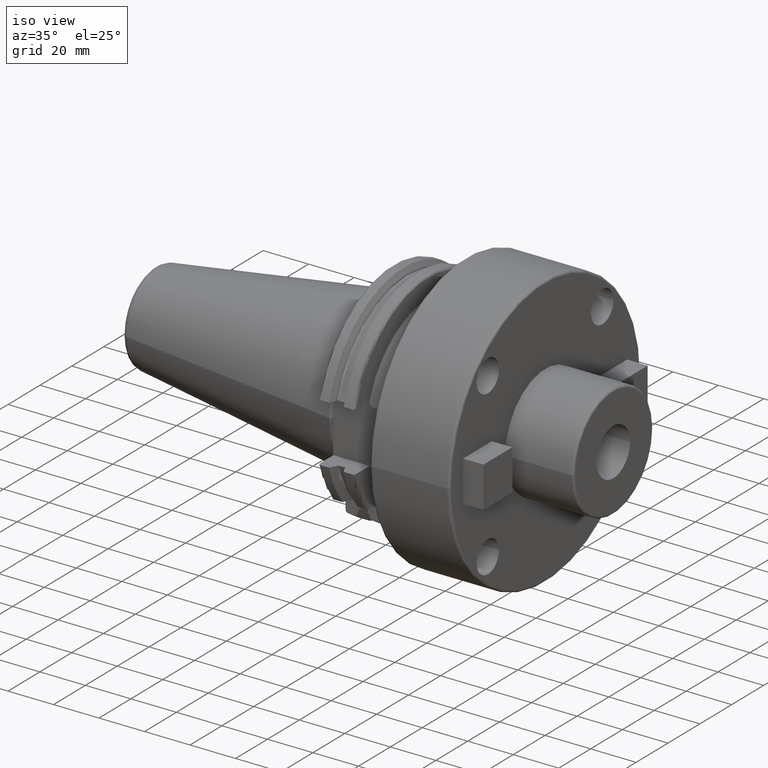
[diagram: clean part render]
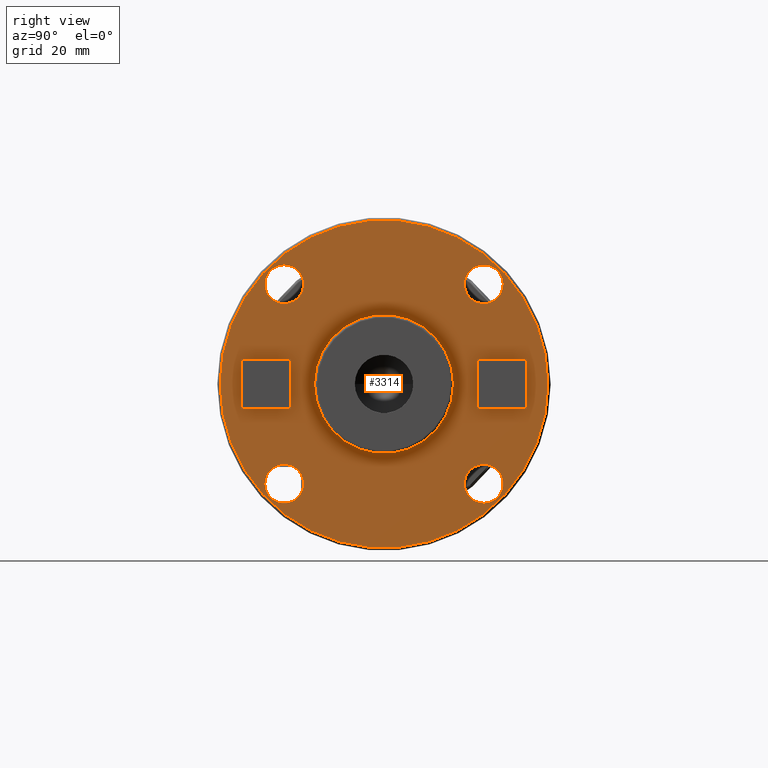
[diagram: tour spotlight — one face highlighted and labeled with its STEP entity id]
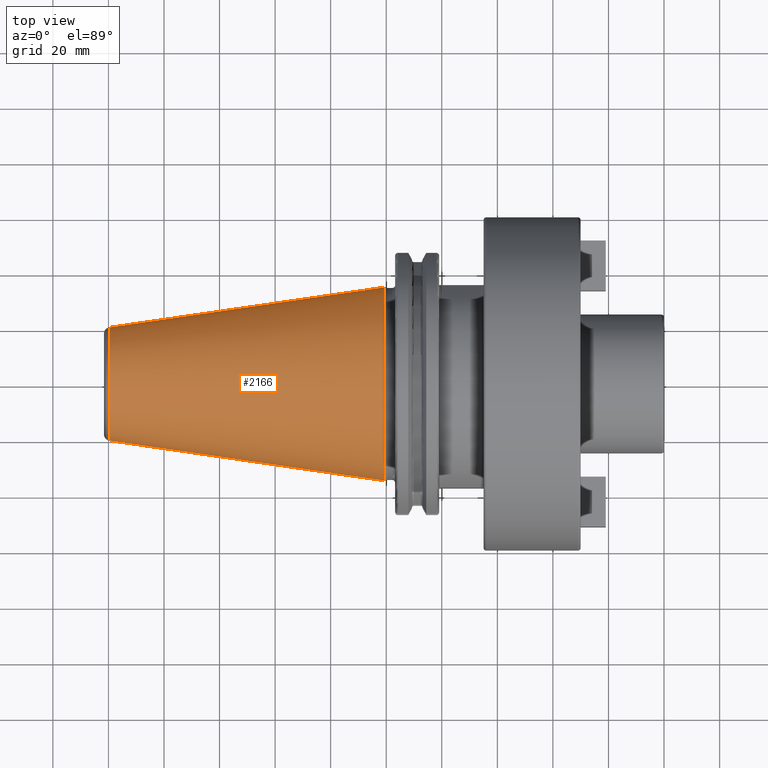
[diagram: tour spotlight — one face highlighted and labeled with its STEP entity id]
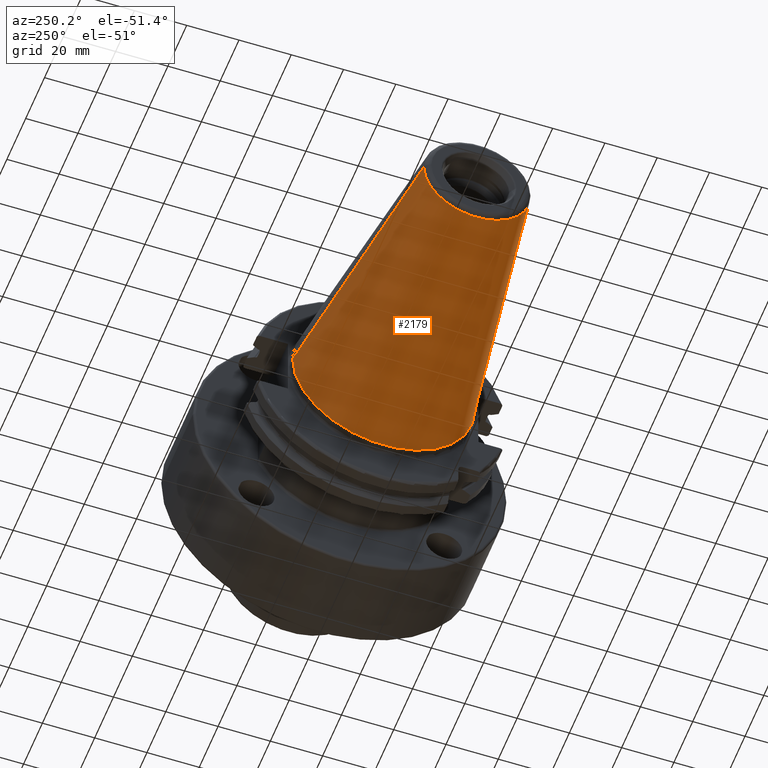
[diagram: tour spotlight — one face highlighted and labeled with its STEP entity id]
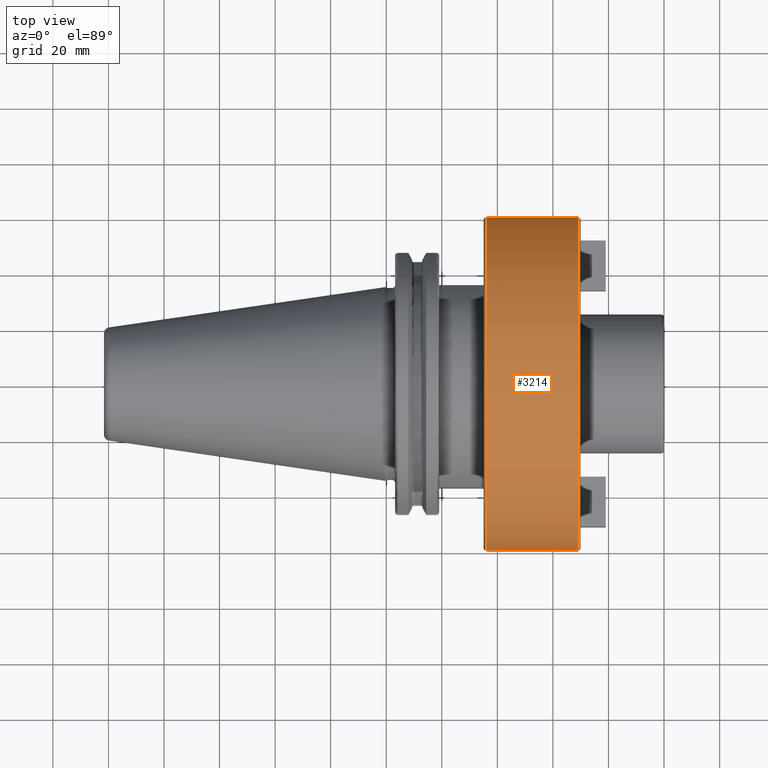
[diagram: tour spotlight — one face highlighted and labeled with its STEP entity id]
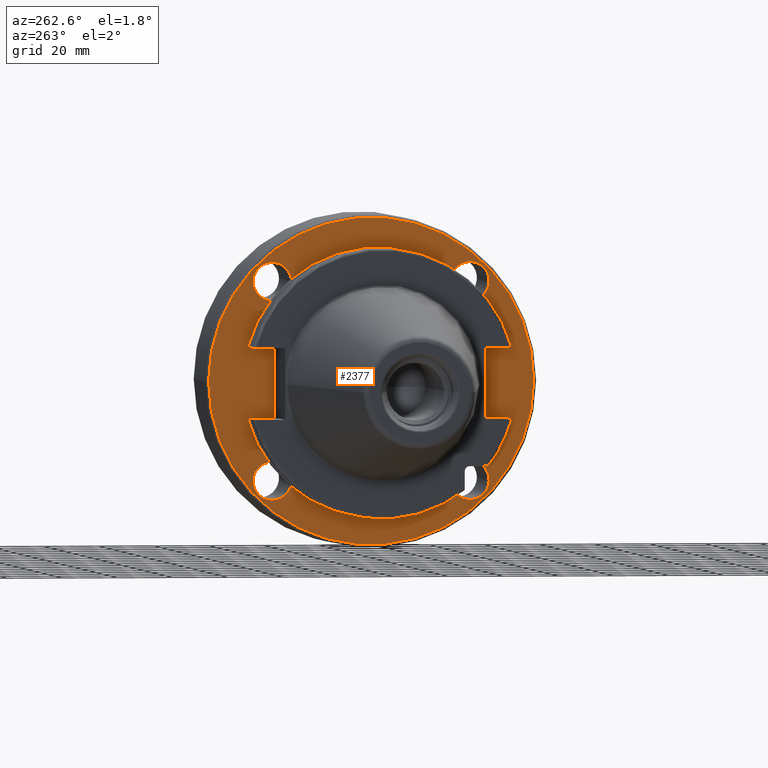
[diagram: tour spotlight — one face highlighted and labeled with its STEP entity id]
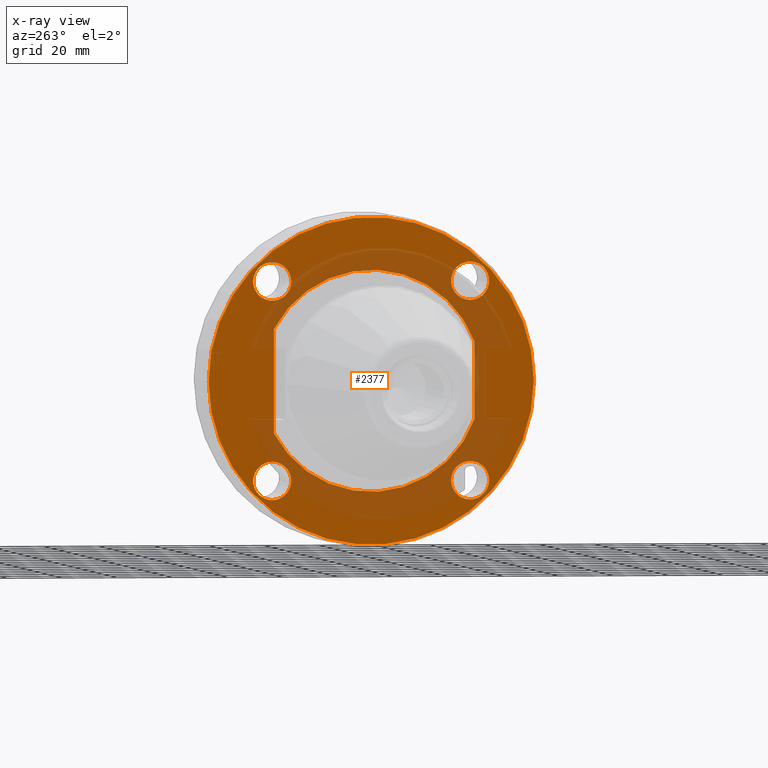
[diagram: x-ray of the same camera — body ghosted, this tour face saturated]
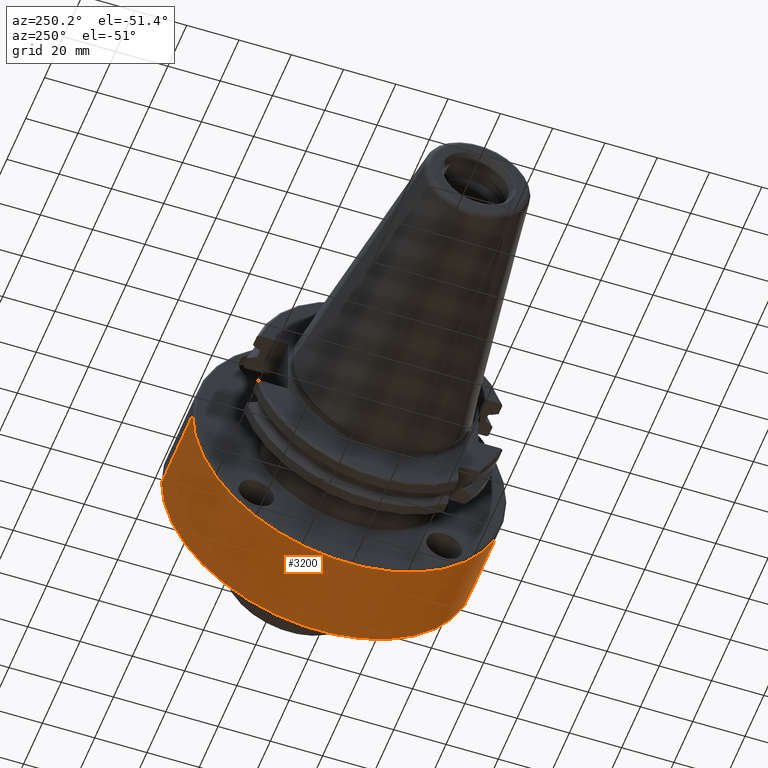
[diagram: tour spotlight — one face highlighted and labeled with its STEP entity id]
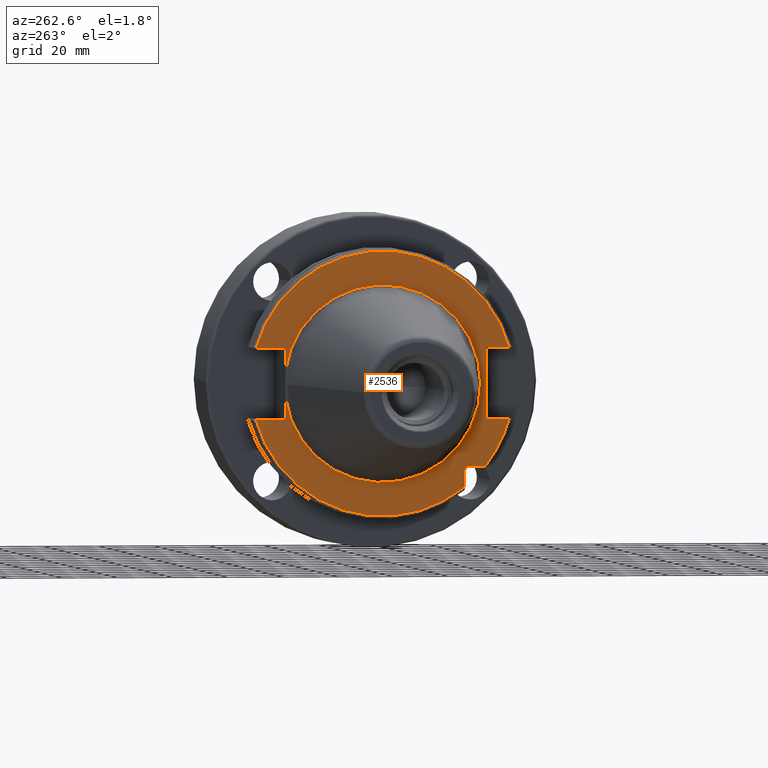
[diagram: tour spotlight — one face highlighted and labeled with its STEP entity id]
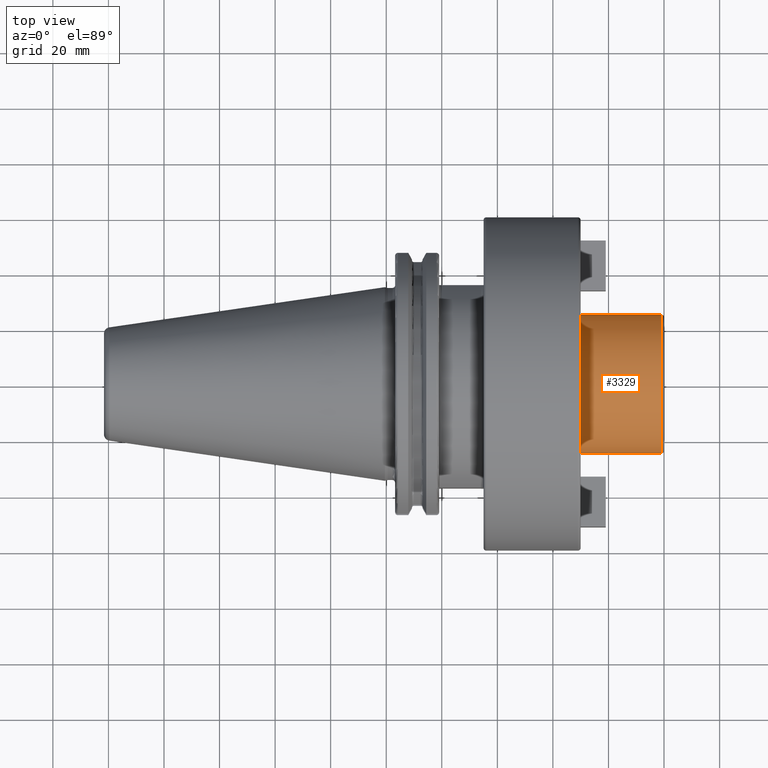
[diagram: tour spotlight — one face highlighted and labeled with its STEP entity id]
A machine part: a face-by-face anatomy tour. The part has 146 B-rep faces; the first image is the clean iso view, then the 8 largest visible faces are spotlighted one at a time (largest first), each with its STEP entity span.

Face 1 — right view, entity #3314. In plain terms, the highlighted planar face has unit normal (1, 0, 0).
Definition (entity closure, byte-faithful):
#1199=CARTESIAN_POINT('',(7.E1,0.E0,0.E0));
#1200=DIRECTION('',(1.E0,0.E0,0.E0));
#1201=DIRECTION('',(0.E0,1.E0,0.E0));
#1202=AXIS2_PLACEMENT_3D('',#1199,#1200,#1201);
#1204=CARTESIAN_POINT('',(7.E1,0.E0,0.E0));
#1205=DIRECTION('',(-1.E0,0.E0,0.E0));
#1206=DIRECTION('',(0.E0,1.E0,0.E0));
#1207=AXIS2_PLACEMENT_3D('',#1204,#1205,#1206);
#1209=CARTESIAN_POINT('',(7.E1,0.E0,0.E0));
#1210=DIRECTION('',(-1.E0,0.E0,0.E0));
#1211=DIRECTION('',(0.E0,1.E0,0.E0));
#1212=AXIS2_PLACEMENT_3D('',#1209,#1210,#1211);
#1214=CARTESIAN_POINT('',(7.E1,0.E0,0.E0));
#1215=DIRECTION('',(-1.E0,0.E0,0.E0));
#1216=DIRECTION('',(0.E0,-1.E0,0.E0));
#1217=AXIS2_PLACEMENT_3D('',#1214,#1215,#1216);
#1219=DIRECTION('',(0.E0,-1.E0,0.E0));
#1220=VECTOR('',#1219,1.8E1);
#1221=CARTESIAN_POINT('',(7.E1,5.15E1,9.E0));
#1222=LINE('',#1221,#1220);
#1223=DIRECTION('',(0.E0,0.E0,-1.E0));
#1224=VECTOR('',#1223,1.8E1);
#1225=CARTESIAN_POINT('',(7.E1,3.35E1,9.E0));
#1226=LINE('',#1225,#1224);
#1227=DIRECTION('',(0.E0,1.E0,0.E0));
#1228=VECTOR('',#1227,1.8E1);
#1229=CARTESIAN_POINT('',(7.E1,3.35E1,-9.E0));
#1230=LINE('',#1229,#1228);
#1231=DIRECTION('',(0.E0,0.E0,1.E0));
#1232=VECTOR('',#1231,1.8E1);
#1233=CARTESIAN_POINT('',(7.E1,5.15E1,-9.E0));
#1234=LINE('',#1233,#1232);
#1235=DIRECTION('',(0.E0,-1.E0,0.E0));
#1236=VECTOR('',#1235,1.8E1);
#1237=CARTESIAN_POINT('',(7.E1,-3.35E1,9.E0));
#1238=LINE('',#1237,#1236);
#1239=DIRECTION('',(0.E0,0.E0,-1.E0));
#1240=VECTOR('',#1239,1.8E1);
#1241=CARTESIAN_POINT('',(7.E1,-5.15E1,9.E0));
#1242=LINE('',#1241,#1240);
#1243=DIRECTION('',(0.E0,1.E0,0.E0));
#1244=VECTOR('',#1243,1.8E1);
#1245=CARTESIAN_POINT('',(7.E1,-5.15E1,-9.E0));
#1246=LINE('',#1245,#1244);
#1247=DIRECTION('',(0.E0,0.E0,1.E0));
#1248=VECTOR('',#1247,1.8E1);
#1249=CARTESIAN_POINT('',(7.E1,-3.35E1,-9.E0));
#1250=LINE('',#1249,#1248);
#1251=CARTESIAN_POINT('',(7.E1,-3.592102448428E1,-3.592102448428E1));
#1252=DIRECTION('',(1.E0,0.E0,0.E0));
#1253=DIRECTION('',(0.E0,-1.E0,0.E0));
#1254=AXIS2_PLACEMENT_3D('',#1251,#1252,#1253);
#1256=CARTESIAN_POINT('',(7.E1,-3.592102448428E1,-3.592102448428E1));
#1257=DIRECTION('',(1.E0,0.E0,0.E0));
#1258=DIRECTION('',(0.E0,1.E0,0.E0));
#1259=AXIS2_PLACEMENT_3D('',#1256,#1257,#1258);
#1261=CARTESIAN_POINT('',(7.E1,3.592102448428E1,-3.592102448428E1));
#1262=DIRECTION('',(1.E0,0.E0,0.E0));
#1263=DIRECTION('',(0.E0,0.E0,-1.E0));
#1264=AXIS2_PLACEMENT_3D('',#1261,#1262,#1263);
#1266=CARTESIAN_POINT('',(7.E1,3.592102448428E1,-3.592102448428E1));
#1267=DIRECTION('',(1.E0,0.E0,0.E0));
#1268=DIRECTION('',(0.E0,0.E0,1.E0));
#1269=AXIS2_PLACEMENT_3D('',#1266,#1267,#1268);
#1271=CARTESIAN_POINT('',(7.E1,3.592102448428E1,3.592102448428E1));
#1272=DIRECTION('',(1.E0,0.E0,0.E0));
#1273=DIRECTION('',(0.E0,1.E0,0.E0));
#1274=AXIS2_PLACEMENT_3D('',#1271,#1272,#1273);
#1276=CARTESIAN_POINT('',(7.E1,3.592102448428E1,3.592102448428E1));
#1277=DIRECTION('',(1.E0,0.E0,0.E0));
#1278=DIRECTION('',(0.E0,-1.E0,0.E0));
#1279=AXIS2_PLACEMENT_3D('',#1276,#1277,#1278);
#1281=CARTESIAN_POINT('',(7.E1,-3.592102448428E1,3.592102448428E1));
#1282=DIRECTION('',(1.E0,0.E0,0.E0));
#1283=DIRECTION('',(0.E0,0.E0,1.E0));
#1284=AXIS2_PLACEMENT_3D('',#1281,#1282,#1283);
#1286=CARTESIAN_POINT('',(7.E1,-3.592102448428E1,3.592102448428E1));
#1287=DIRECTION('',(1.E0,0.E0,0.E0));
#1288=DIRECTION('',(0.E0,0.E0,-1.E0));
#1289=AXIS2_PLACEMENT_3D('',#1286,#1287,#1288);
#1942=CARTESIAN_POINT('',(7.E1,2.5E1,0.E0));
#1943=CARTESIAN_POINT('',(7.E1,-2.5E1,0.E0));
#1944=VERTEX_POINT('',#1942);
#1945=VERTEX_POINT('',#1943);
#1950=CARTESIAN_POINT('',(7.E1,5.9E1,0.E0));
#1951=CARTESIAN_POINT('',(7.E1,-5.9E1,-1.445083222994E-14));
#1952=VERTEX_POINT('',#1950);
#1953=VERTEX_POINT('',#1951);
#1988=CARTESIAN_POINT('',(7.E1,5.15E1,9.E0));
#1989=CARTESIAN_POINT('',(7.E1,3.35E1,9.E0));
#1990=VERTEX_POINT('',#1988);
#1991=VERTEX_POINT('',#1989);
#1992=CARTESIAN_POINT('',(7.E1,3.35E1,-9.E0));
#1993=VERTEX_POINT('',#1992);
#1994=CARTESIAN_POINT('',(7.E1,5.15E1,-9.E0));
#1995=VERTEX_POINT('',#1994);
#1996=CARTESIAN_POINT('',(7.E1,-3.35E1,9.E0));
#1997=CARTESIAN_POINT('',(7.E1,-5.15E1,9.E0));
#1998=VERTEX_POINT('',#1996);
#1999=VERTEX_POINT('',#1997);
#2000=CARTESIAN_POINT('',(7.E1,-5.15E1,-9.E0));
#2001=VERTEX_POINT('',#2000);
#2002=CARTESIAN_POINT('',(7.E1,-3.35E1,-9.E0));
#2003=VERTEX_POINT('',#2002);
#2056=CARTESIAN_POINT('',(7.E1,-4.292102448428E1,-3.592102448428E1));
#2057=CARTESIAN_POINT('',(7.E1,-2.892102448428E1,-3.592102448428E1));
#2058=VERTEX_POINT('',#2056);
#2059=VERTEX_POINT('',#2057);
#2064=CARTESIAN_POINT('',(7.E1,3.592102448428E1,-4.292102448428E1));
#2065=CARTESIAN_POINT('',(7.E1,3.592102448428E1,-2.892102448428E1));
#2066=VERTEX_POINT('',#2064);
#2067=VERTEX_POINT('',#2065);
#2072=CARTESIAN_POINT('',(7.E1,4.292102448428E1,3.592102448428E1));
#2073=CARTESIAN_POINT('',(7.E1,2.892102448428E1,3.592102448428E1));
#2074=VERTEX_POINT('',#2072);
#2075=VERTEX_POINT('',#2073);
#2080=CARTESIAN_POINT('',(7.E1,-3.592102448428E1,4.292102448428E1));
#2081=CARTESIAN_POINT('',(7.E1,-3.592102448428E1,2.892102448428E1));
#2082=VERTEX_POINT('',#2080);
#2083=VERTEX_POINT('',#2081);
#3255=CARTESIAN_POINT('',(7.E1,0.E0,0.E0));
#3256=DIRECTION('',(1.E0,0.E0,0.E0));
#3257=DIRECTION('',(0.E0,-1.E0,0.E0));
#3258=AXIS2_PLACEMENT_3D('',#3255,#3256,#3257);
#3259=PLANE('',#3258);
#3260=ORIENTED_EDGE('',*,*,#3249,.T.);
#3261=ORIENTED_EDGE('',*,*,#3235,.T.);
#3262=EDGE_LOOP('',(#3260,#3261));
#3263=FACE_OUTER_BOUND('',#3262,.F.);
#3265=ORIENTED_EDGE('',*,*,#3264,.T.);
#3267=ORIENTED_EDGE('',*,*,#3266,.F.);
#3268=EDGE_LOOP('',(#3265,#3267));
#3269=FACE_BOUND('',#3268,.F.);
#3271=ORIENTED_EDGE('',*,*,#3270,.T.);
#3273=ORIENTED_EDGE('',*,*,#3272,.T.);
#3275=ORIENTED_EDGE('',*,*,#3274,.T.);
#3277=ORIENTED_EDGE('',*,*,#3276,.T.);
#3278=EDGE_LOOP('',(#3271,#3273,#3275,#3277));
#3279=FACE_BOUND('',#3278,.F.);
#3281=ORIENTED_EDGE('',*,*,#3280,.T.);
#3283=ORIENTED_EDGE('',*,*,#3282,.T.);
#3285=ORIENTED_EDGE('',*,*,#3284,.T.);
#3287=ORIENTED_EDGE('',*,*,#3286,.T.);
#3288=EDGE_LOOP('',(#3281,#3283,#3285,#3287));
#3289=FACE_BOUND('',#3288,.F.);
#3291=ORIENTED_EDGE('',*,*,#3290,.T.);
#3293=ORIENTED_EDGE('',*,*,#3292,.T.);
#3294=EDGE_LOOP('',(#3291,#3293));
#3295=FACE_BOUND('',#3294,.F.);
#3297=ORIENTED_EDGE('',*,*,#3296,.T.);
#3299=ORIENTED_EDGE('',*,*,#3298,.T.);
#3300=EDGE_LOOP('',(#3297,#3299));
#3301=FACE_BOUND('',#3300,.F.);
#3303=ORIENTED_EDGE('',*,*,#3302,.T.);
#3305=ORIENTED_EDGE('',*,*,#3304,.T.);
#3306=EDGE_LOOP('',(#3303,#3305));
#3307=FACE_BOUND('',#3306,.F.);
#3309=ORIENTED_EDGE('',*,*,#3308,.T.);
#3311=ORIENTED_EDGE('',*,*,#3310,.T.);
#3312=EDGE_LOOP('',(#3309,#3311));
#3313=FACE_BOUND('',#3312,.F.);
#3314=ADVANCED_FACE('',(#3263,#3269,#3279,#3289,#3295,#3301,#3307,#3313),#3259,
.T.);
#1203=CIRCLE('',#1202,2.5E1);
#1208=CIRCLE('',#1207,2.5E1);
#1213=CIRCLE('',#1212,5.9E1);
#1218=CIRCLE('',#1217,5.9E1);
#1255=CIRCLE('',#1254,7.E0);
#1260=CIRCLE('',#1259,7.E0);
#1265=CIRCLE('',#1264,7.E0);
#1270=CIRCLE('',#1269,7.E0);
#1275=CIRCLE('',#1274,7.E0);
#1280=CIRCLE('',#1279,7.E0);
#1285=CIRCLE('',#1284,7.E0);
#1290=CIRCLE('',#1289,7.E0);
#3235=EDGE_CURVE('',#1953,#1952,#1218,.T.);
#3249=EDGE_CURVE('',#1952,#1953,#1213,.T.);
#3264=EDGE_CURVE('',#1944,#1945,#1203,.T.);
#3266=EDGE_CURVE('',#1944,#1945,#1208,.T.);
#3270=EDGE_CURVE('',#1990,#1991,#1222,.T.);
#3272=EDGE_CURVE('',#1991,#1993,#1226,.T.);
#3274=EDGE_CURVE('',#1993,#1995,#1230,.T.);
#3276=EDGE_CURVE('',#1995,#1990,#1234,.T.);
#3280=EDGE_CURVE('',#1998,#1999,#1238,.T.);
#3282=EDGE_CURVE('',#1999,#2001,#1242,.T.);
#3284=EDGE_CURVE('',#2001,#2003,#1246,.T.);
#3286=EDGE_CURVE('',#2003,#1998,#1250,.T.);
#3290=EDGE_CURVE('',#2058,#2059,#1255,.T.);
#3292=EDGE_CURVE('',#2059,#2058,#1260,.T.);
#3296=EDGE_CURVE('',#2066,#2067,#1265,.T.);
#3298=EDGE_CURVE('',#2067,#2066,#1270,.T.);
#3302=EDGE_CURVE('',#2074,#2075,#1275,.T.);
#3304=EDGE_CURVE('',#2075,#2074,#1280,.T.);
#3308=EDGE_CURVE('',#2082,#2083,#1285,.T.);
#3310=EDGE_CURVE('',#2083,#2082,#1290,.T.);

Face 2 — top view, entity #2166. In plain terms, the highlighted conical surface has half-angle 8.298 deg.
Definition (entity closure, byte-faithful):
#37=CARTESIAN_POINT('',(-9.967471700563E1,0.E0,0.E0));
#38=DIRECTION('',(1.E0,0.E0,0.E0));
#39=DIRECTION('',(0.E0,1.E0,0.E0));
#40=AXIS2_PLACEMENT_3D('',#37,#38,#39);
#42=CARTESIAN_POINT('',(-4.896823332305E-1,0.E0,0.E0));
#43=DIRECTION('',(1.E0,0.E0,0.E0));
#44=DIRECTION('',(0.E0,1.E0,0.E0));
#45=AXIS2_PLACEMENT_3D('',#42,#43,#44);
#47=DIRECTION('',(-9.895312636440E-1,-1.443186691705E-1,0.E0));
#48=VECTOR('',#47,1.002343617797E2);
#49=CARTESIAN_POINT('',(-4.896823332305E-1,3.485358204157E1,0.E0));
#50=LINE('',#49,#48);
#51=DIRECTION('',(-9.895312636440E-1,1.443186691705E-1,0.E0));
#52=VECTOR('',#51,1.002343617797E2);
#53=CARTESIAN_POINT('',(-4.896823332305E-1,-3.485358204157E1,0.E0));
#54=LINE('',#53,#52);
#1739=CARTESIAN_POINT('',(-9.967471700563E1,2.038789234437E1,0.E0));
#1741=VERTEX_POINT('',#1739);
#1743=CARTESIAN_POINT('',(-9.967471700563E1,-2.038789234437E1,0.E0));
#1745=VERTEX_POINT('',#1743);
#1807=CARTESIAN_POINT('',(-4.896823332305E-1,3.485358204157E1,0.E0));
#1808=VERTEX_POINT('',#1807);
#1809=CARTESIAN_POINT('',(-4.896823332305E-1,-3.485358204157E1,0.E0));
#1810=VERTEX_POINT('',#1809);
#2152=CARTESIAN_POINT('',(-5.008219966943E1,0.E0,0.E0));
#2153=DIRECTION('',(1.E0,0.E0,0.E0));
#2154=DIRECTION('',(0.E0,-1.E0,0.E0));
#2155=AXIS2_PLACEMENT_3D('',#2152,#2153,#2154);
#2156=CONICAL_SURFACE('',#2155,2.762073719297E1,8.297826828206E0);
#2158=ORIENTED_EDGE('',*,*,#2157,.F.);
#2160=ORIENTED_EDGE('',*,*,#2159,.T.);
#2162=ORIENTED_EDGE('',*,*,#2161,.T.);
#2163=ORIENTED_EDGE('',*,*,#2145,.F.);
#2164=EDGE_LOOP('',(#2158,#2160,#2162,#2163));
#2165=FACE_OUTER_BOUND('',#2164,.F.);
#2166=ADVANCED_FACE('',(#2165),#2156,.T.);
#41=CIRCLE('',#40,2.038789234437E1);
#46=CIRCLE('',#45,3.485358204157E1);
#2145=EDGE_CURVE('',#1741,#1745,#41,.T.);
#2157=EDGE_CURVE('',#1808,#1741,#50,.T.);
#2159=EDGE_CURVE('',#1808,#1810,#46,.T.);
#2161=EDGE_CURVE('',#1810,#1745,#54,.T.);

Face 3 — auxiliary view, entity #2179. In plain terms, the highlighted conical surface has half-angle 8.298 deg.
Definition (entity closure, byte-faithful):
#32=CARTESIAN_POINT('',(-9.967471700563E1,0.E0,0.E0));
#33=DIRECTION('',(-1.E0,0.E0,0.E0));
#34=DIRECTION('',(0.E0,1.E0,0.E0));
#35=AXIS2_PLACEMENT_3D('',#32,#33,#34);
#47=DIRECTION('',(-9.895312636440E-1,-1.443186691705E-1,0.E0));
#48=VECTOR('',#47,1.002343617797E2);
#49=CARTESIAN_POINT('',(-4.896823332305E-1,3.485358204157E1,0.E0));
#50=LINE('',#49,#48);
#51=DIRECTION('',(-9.895312636440E-1,1.443186691705E-1,0.E0));
#52=VECTOR('',#51,1.002343617797E2);
#53=CARTESIAN_POINT('',(-4.896823332305E-1,-3.485358204157E1,0.E0));
#54=LINE('',#53,#52);
#55=CARTESIAN_POINT('',(-4.896823332305E-1,0.E0,0.E0));
#56=DIRECTION('',(-1.E0,0.E0,0.E0));
#57=DIRECTION('',(0.E0,1.E0,0.E0));
#58=AXIS2_PLACEMENT_3D('',#55,#56,#57);
#1739=CARTESIAN_POINT('',(-9.967471700563E1,2.038789234437E1,0.E0));
#1741=VERTEX_POINT('',#1739);
#1743=CARTESIAN_POINT('',(-9.967471700563E1,-2.038789234437E1,0.E0));
#1745=VERTEX_POINT('',#1743);
#1807=CARTESIAN_POINT('',(-4.896823332305E-1,3.485358204157E1,0.E0));
#1808=VERTEX_POINT('',#1807);
#1809=CARTESIAN_POINT('',(-4.896823332305E-1,-3.485358204157E1,0.E0));
#1810=VERTEX_POINT('',#1809);
#2167=CARTESIAN_POINT('',(-5.008219966943E1,0.E0,0.E0));
#2168=DIRECTION('',(1.E0,0.E0,0.E0));
#2169=DIRECTION('',(0.E0,-1.E0,0.E0));
#2170=AXIS2_PLACEMENT_3D('',#2167,#2168,#2169);
#2171=CONICAL_SURFACE('',#2170,2.762073719297E1,8.297826828206E0);
#2172=ORIENTED_EDGE('',*,*,#2157,.T.);
#2173=ORIENTED_EDGE('',*,*,#2134,.T.);
#2174=ORIENTED_EDGE('',*,*,#2161,.F.);
#2176=ORIENTED_EDGE('',*,*,#2175,.F.);
#2177=EDGE_LOOP('',(#2172,#2173,#2174,#2176));
#2178=FACE_OUTER_BOUND('',#2177,.F.);
#2179=ADVANCED_FACE('',(#2178),#2171,.T.);
#36=CIRCLE('',#35,2.038789234437E1);
#59=CIRCLE('',#58,3.485358204157E1);
#2134=EDGE_CURVE('',#1741,#1745,#36,.T.);
#2157=EDGE_CURVE('',#1808,#1741,#50,.T.);
#2161=EDGE_CURVE('',#1810,#1745,#54,.T.);
#2175=EDGE_CURVE('',#1808,#1810,#59,.T.);

Face 4 — top view, entity #3214. In plain terms, the highlighted cylindrical surface (partial cylindrical patch) has radius 60 mm, axis along (1, 0, 0).
Definition (entity closure, byte-faithful):
#1161=DIRECTION('',(-1.E0,0.E0,0.E0));
#1162=VECTOR('',#1161,3.295E1);
#1163=CARTESIAN_POINT('',(6.9E1,-6.E1,2.293775869450E-13));
#1164=LINE('',#1163,#1162);
#1170=DIRECTION('',(-1.E0,0.E0,0.E0));
#1171=VECTOR('',#1170,3.295E1);
#1172=CARTESIAN_POINT('',(6.9E1,6.E1,-2.445372334392E-13));
#1173=LINE('',#1172,#1171);
#1174=CARTESIAN_POINT('',(3.605E1,0.E0,0.E0));
#1175=DIRECTION('',(1.E0,0.E0,0.E0));
#1176=DIRECTION('',(0.E0,1.E0,0.E0));
#1177=AXIS2_PLACEMENT_3D('',#1174,#1175,#1176);
#1179=CARTESIAN_POINT('',(6.9E1,0.E0,0.E0));
#1180=DIRECTION('',(-1.E0,0.E0,0.E0));
#1181=DIRECTION('',(0.E0,-1.E0,0.E0));
#1182=AXIS2_PLACEMENT_3D('',#1179,#1180,#1181);
#1946=CARTESIAN_POINT('',(6.9E1,6.E1,0.E0));
#1947=CARTESIAN_POINT('',(6.9E1,-6.E1,-1.469576158977E-14));
#1948=VERTEX_POINT('',#1946);
#1949=VERTEX_POINT('',#1947);
#2044=CARTESIAN_POINT('',(3.605E1,-6.E1,-1.469576158977E-14));
#2045=CARTESIAN_POINT('',(3.605E1,6.E1,0.E0));
#2046=VERTEX_POINT('',#2044);
#2047=VERTEX_POINT('',#2045);
#3201=CARTESIAN_POINT('',(1.50025E1,0.E0,0.E0));
#3202=DIRECTION('',(1.E0,0.E0,0.E0));
#3203=DIRECTION('',(0.E0,-1.E0,0.E0));
#3204=AXIS2_PLACEMENT_3D('',#3201,#3202,#3203);
#3205=CYLINDRICAL_SURFACE('',#3204,6.E1);
#3207=ORIENTED_EDGE('',*,*,#3206,.F.);
#3208=ORIENTED_EDGE('',*,*,#3196,.F.);
#3210=ORIENTED_EDGE('',*,*,#3209,.F.);
#3211=ORIENTED_EDGE('',*,*,#3192,.T.);
#3212=EDGE_LOOP('',(#3207,#3208,#3210,#3211));
#3213=FACE_OUTER_BOUND('',#3212,.F.);
#3214=ADVANCED_FACE('',(#3213),#3205,.T.);
#1178=CIRCLE('',#1177,6.E1);
#1183=CIRCLE('',#1182,6.E1);
#3192=EDGE_CURVE('',#1949,#2046,#1164,.T.);
#3196=EDGE_CURVE('',#1948,#2047,#1173,.T.);
#3206=EDGE_CURVE('',#2047,#2046,#1178,.T.);
#3209=EDGE_CURVE('',#1949,#1948,#1183,.T.);

Face 5 — auxiliary view, entity #2377. An x-ray twin of the same camera follows (body ghosted, this face saturated) — the face is partly hidden behind the body. In plain terms, the highlighted planar face has unit normal (1, 0, 0).
Definition (entity closure, byte-faithful):
#122=DIRECTION('',(0.E0,0.E0,1.E0));
#123=VECTOR('',#122,3.762499169435E1);
#124=CARTESIAN_POINT('',(3.505E1,3.53E1,-1.881249584718E1));
#125=LINE('',#124,#123);
#154=CARTESIAN_POINT('',(3.505E1,0.E0,0.E0));
#155=DIRECTION('',(1.E0,0.E0,0.E0));
#156=DIRECTION('',(0.E0,8.825E-1,4.703123961794E-1));
#157=AXIS2_PLACEMENT_3D('',#154,#155,#156);
#159=CARTESIAN_POINT('',(3.505E1,-3.75E1,1.391941090708E1));
#199=CARTESIAN_POINT('',(3.505E1,3.53E1,1.881249584718E1));
#201=CARTESIAN_POINT('',(3.505E1,0.E0,0.E0));
#202=DIRECTION('',(1.E0,0.E0,0.E0));
#203=DIRECTION('',(0.E0,-1.E0,0.E0));
#204=AXIS2_PLACEMENT_3D('',#201,#202,#203);
#206=CARTESIAN_POINT('',(3.505E1,0.E0,0.E0));
#207=DIRECTION('',(1.E0,0.E0,0.E0));
#208=DIRECTION('',(0.E0,1.E0,0.E0));
#209=AXIS2_PLACEMENT_3D('',#206,#207,#208);
#211=CARTESIAN_POINT('',(3.505E1,-3.592102448428E1,-3.592102448428E1));
#212=DIRECTION('',(1.E0,0.E0,0.E0));
#213=DIRECTION('',(0.E0,-1.E0,0.E0));
#214=AXIS2_PLACEMENT_3D('',#211,#212,#213);
#216=CARTESIAN_POINT('',(3.505E1,-3.592102448428E1,-3.592102448428E1));
#217=DIRECTION('',(1.E0,0.E0,0.E0));
#218=DIRECTION('',(0.E0,1.E0,0.E0));
#219=AXIS2_PLACEMENT_3D('',#216,#217,#218);
#221=CARTESIAN_POINT('',(3.505E1,3.592102448428E1,-3.592102448428E1));
#222=DIRECTION('',(1.E0,0.E0,0.E0));
#223=DIRECTION('',(0.E0,0.E0,-1.E0));
#224=AXIS2_PLACEMENT_3D('',#221,#222,#223);
#226=CARTESIAN_POINT('',(3.505E1,3.592102448428E1,-3.592102448428E1));
#227=DIRECTION('',(1.E0,0.E0,0.E0));
#228=DIRECTION('',(0.E0,0.E0,1.E0));
#229=AXIS2_PLACEMENT_3D('',#226,#227,#228);
#231=CARTESIAN_POINT('',(3.505E1,3.592102448428E1,3.592102448428E1));
#232=DIRECTION('',(1.E0,0.E0,0.E0));
#233=DIRECTION('',(0.E0,1.E0,0.E0));
#234=AXIS2_PLACEMENT_3D('',#231,#232,#233);
#236=CARTESIAN_POINT('',(3.505E1,3.592102448428E1,3.592102448428E1));
#237=DIRECTION('',(1.E0,0.E0,0.E0));
#238=DIRECTION('',(0.E0,-1.E0,0.E0));
#239=AXIS2_PLACEMENT_3D('',#236,#237,#238);
#241=CARTESIAN_POINT('',(3.505E1,-3.592102448428E1,3.592102448428E1));
#242=DIRECTION('',(1.E0,0.E0,0.E0));
#243=DIRECTION('',(0.E0,0.E0,1.E0));
#244=AXIS2_PLACEMENT_3D('',#241,#242,#243);
#246=CARTESIAN_POINT('',(3.505E1,-3.592102448428E1,3.592102448428E1));
#247=DIRECTION('',(1.E0,0.E0,0.E0));
#248=DIRECTION('',(0.E0,0.E0,-1.E0));
#249=AXIS2_PLACEMENT_3D('',#246,#247,#248);
#251=CARTESIAN_POINT('',(3.505E1,0.E0,0.E0));
#252=DIRECTION('',(1.E0,0.E0,0.E0));
#253=DIRECTION('',(0.E0,-9.375E-1,-3.479852726769E-1));
#254=AXIS2_PLACEMENT_3D('',#251,#252,#253);
#256=CARTESIAN_POINT('',(3.505E1,3.53E1,-1.881249584718E1));
#295=CARTESIAN_POINT('',(3.505E1,-3.75E1,-1.391941090708E1));
#297=DIRECTION('',(0.E0,0.E0,-1.E0));
#298=VECTOR('',#297,2.783882181415E1);
#299=CARTESIAN_POINT('',(3.505E1,-3.75E1,1.391941090708E1));
#300=LINE('',#299,#298);
#2034=VERTEX_POINT('',#199);
#2035=VERTEX_POINT('',#159);
#2036=VERTEX_POINT('',#295);
#2037=VERTEX_POINT('',#256);
#2048=CARTESIAN_POINT('',(3.505E1,-5.9E1,-1.421085471520E-14));
#2049=CARTESIAN_POINT('',(3.505E1,5.9E1,0.E0));
#2050=VERTEX_POINT('',#2048);
#2051=VERTEX_POINT('',#2049);
#2090=CARTESIAN_POINT('',(3.505E1,-4.283781051016E1,-3.592102448428E1));
#2091=CARTESIAN_POINT('',(3.505E1,-2.900423845839E1,-3.592102448428E1));
#2092=VERTEX_POINT('',#2090);
#2093=VERTEX_POINT('',#2091);
#2094=CARTESIAN_POINT('',(3.505E1,3.592102448428E1,-4.283781051016E1));
#2095=CARTESIAN_POINT('',(3.505E1,3.592102448428E1,-2.900423845839E1));
#2096=VERTEX_POINT('',#2094);
#2097=VERTEX_POINT('',#2095);
#2098=CARTESIAN_POINT('',(3.505E1,4.283781051016E1,3.592102448428E1));
#2099=CARTESIAN_POINT('',(3.505E1,2.900423845839E1,3.592102448428E1));
#2100=VERTEX_POINT('',#2098);
#2101=VERTEX_POINT('',#2099);
#2102=CARTESIAN_POINT('',(3.505E1,-3.592102448428E1,4.283781051016E1));
#2103=CARTESIAN_POINT('',(3.505E1,-3.592102448428E1,2.900423845839E1));
#2104=VERTEX_POINT('',#2102);
#2105=VERTEX_POINT('',#2103);
#2334=CARTESIAN_POINT('',(3.505E1,3.53E1,4.87375E1));
#2335=DIRECTION('',(1.E0,0.E0,0.E0));
#2336=DIRECTION('',(0.E0,0.E0,-1.E0));
#2337=AXIS2_PLACEMENT_3D('',#2334,#2335,#2336);
#2338=PLANE('',#2337);
#2340=ORIENTED_EDGE('',*,*,#2339,.T.);
#2342=ORIENTED_EDGE('',*,*,#2341,.T.);
#2343=EDGE_LOOP('',(#2340,#2342));
#2344=FACE_OUTER_BOUND('',#2343,.F.);
#2345=ORIENTED_EDGE('',*,*,#2325,.F.);
#2346=ORIENTED_EDGE('',*,*,#2262,.F.);
#2348=ORIENTED_EDGE('',*,*,#2347,.F.);
#2350=ORIENTED_EDGE('',*,*,#2349,.F.);
#2351=EDGE_LOOP('',(#2345,#2346,#2348,#2350));
#2352=FACE_BOUND('',#2351,.F.);
#2354=ORIENTED_EDGE('',*,*,#2353,.F.);
#2356=ORIENTED_EDGE('',*,*,#2355,.F.);
#2357=EDGE_LOOP('',(#2354,#2356));
#2358=FACE_BOUND('',#2357,.F.);
#2360=ORIENTED_EDGE('',*,*,#2359,.F.);
#2362=ORIENTED_EDGE('',*,*,#2361,.F.);
#2363=EDGE_LOOP('',(#2360,#2362));
#2364=FACE_BOUND('',#2363,.F.);
#2366=ORIENTED_EDGE('',*,*,#2365,.F.);
#2368=ORIENTED_EDGE('',*,*,#2367,.F.);
#2369=EDGE_LOOP('',(#2366,#2368));
#2370=FACE_BOUND('',#2369,.F.);
#2372=ORIENTED_EDGE('',*,*,#2371,.F.);
#2374=ORIENTED_EDGE('',*,*,#2373,.F.);
#2375=EDGE_LOOP('',(#2372,#2374));
#2376=FACE_BOUND('',#2375,.F.);
#2377=ADVANCED_FACE('',(#2344,#2352,#2358,#2364,#2370,#2376),#2338,.F.);
#158=CIRCLE('',#157,4.E1);
#205=CIRCLE('',#204,5.9E1);
#210=CIRCLE('',#209,5.9E1);
#215=CIRCLE('',#214,6.916786025882E0);
#220=CIRCLE('',#219,6.916786025882E0);
#225=CIRCLE('',#224,6.916786025882E0);
#230=CIRCLE('',#229,6.916786025882E0);
#235=CIRCLE('',#234,6.916786025882E0);
#240=CIRCLE('',#239,6.916786025882E0);
#245=CIRCLE('',#244,6.916786025882E0);
#250=CIRCLE('',#249,6.916786025882E0);
#255=CIRCLE('',#254,4.E1);
#2262=EDGE_CURVE('',#2037,#2034,#125,.T.);
#2325=EDGE_CURVE('',#2034,#2035,#158,.T.);
#2339=EDGE_CURVE('',#2050,#2051,#205,.T.);
#2341=EDGE_CURVE('',#2051,#2050,#210,.T.);
#2347=EDGE_CURVE('',#2036,#2037,#255,.T.);
#2349=EDGE_CURVE('',#2035,#2036,#300,.T.);
#2353=EDGE_CURVE('',#2092,#2093,#215,.T.);
#2355=EDGE_CURVE('',#2093,#2092,#220,.T.);
#2359=EDGE_CURVE('',#2096,#2097,#225,.T.);
#2361=EDGE_CURVE('',#2097,#2096,#230,.T.);
#2365=EDGE_CURVE('',#2100,#2101,#235,.T.);
#2367=EDGE_CURVE('',#2101,#2100,#240,.T.);
#2371=EDGE_CURVE('',#2104,#2105,#245,.T.);
#2373=EDGE_CURVE('',#2105,#2104,#250,.T.);

Face 6 — auxiliary view, entity #3200. In plain terms, the highlighted cylindrical surface (partial cylindrical patch) has radius 60 mm, axis along (1, 0, 0).
Definition (entity closure, byte-faithful):
#1156=CARTESIAN_POINT('',(3.605E1,0.E0,0.E0));
#1157=DIRECTION('',(1.E0,0.E0,0.E0));
#1158=DIRECTION('',(0.E0,-1.E0,0.E0));
#1159=AXIS2_PLACEMENT_3D('',#1156,#1157,#1158);
#1161=DIRECTION('',(-1.E0,0.E0,0.E0));
#1162=VECTOR('',#1161,3.295E1);
#1163=CARTESIAN_POINT('',(6.9E1,-6.E1,2.293775869450E-13));
#1164=LINE('',#1163,#1162);
#1165=CARTESIAN_POINT('',(6.9E1,0.E0,0.E0));
#1166=DIRECTION('',(-1.E0,0.E0,0.E0));
#1167=DIRECTION('',(0.E0,1.E0,0.E0));
#1168=AXIS2_PLACEMENT_3D('',#1165,#1166,#1167);
#1170=DIRECTION('',(-1.E0,0.E0,0.E0));
#1171=VECTOR('',#1170,3.295E1);
#1172=CARTESIAN_POINT('',(6.9E1,6.E1,-2.445372334392E-13));
#1173=LINE('',#1172,#1171);
#1946=CARTESIAN_POINT('',(6.9E1,6.E1,0.E0));
#1947=CARTESIAN_POINT('',(6.9E1,-6.E1,-1.469576158977E-14));
#1948=VERTEX_POINT('',#1946);
#1949=VERTEX_POINT('',#1947);
#2044=CARTESIAN_POINT('',(3.605E1,-6.E1,-1.469576158977E-14));
#2045=CARTESIAN_POINT('',(3.605E1,6.E1,0.E0));
#2046=VERTEX_POINT('',#2044);
#2047=VERTEX_POINT('',#2045);
#3186=CARTESIAN_POINT('',(1.50025E1,0.E0,0.E0));
#3187=DIRECTION('',(1.E0,0.E0,0.E0));
#3188=DIRECTION('',(0.E0,-1.E0,0.E0));
#3189=AXIS2_PLACEMENT_3D('',#3186,#3187,#3188);
#3190=CYLINDRICAL_SURFACE('',#3189,6.E1);
#3191=ORIENTED_EDGE('',*,*,#3176,.F.);
#3193=ORIENTED_EDGE('',*,*,#3192,.F.);
#3195=ORIENTED_EDGE('',*,*,#3194,.F.);
#3197=ORIENTED_EDGE('',*,*,#3196,.T.);
#3198=EDGE_LOOP('',(#3191,#3193,#3195,#3197));
#3199=FACE_OUTER_BOUND('',#3198,.F.);
#3200=ADVANCED_FACE('',(#3199),#3190,.T.);
#1160=CIRCLE('',#1159,6.E1);
#1169=CIRCLE('',#1168,6.E1);
#3176=EDGE_CURVE('',#2046,#2047,#1160,.T.);
#3192=EDGE_CURVE('',#1949,#2046,#1164,.T.);
#3194=EDGE_CURVE('',#1948,#1949,#1169,.T.);
#3196=EDGE_CURVE('',#1948,#2047,#1173,.T.);

Face 7 — auxiliary view, entity #2536. In plain terms, the highlighted planar face has unit normal (1, 0, 0).
Definition (entity closure, byte-faithful):
#117=CARTESIAN_POINT('',(3.2E0,0.E0,0.E0));
#118=DIRECTION('',(-1.E0,0.E0,0.E0));
#119=DIRECTION('',(0.E0,9.922698524245E-1,-1.240989120402E-1));
#120=AXIS2_PLACEMENT_3D('',#117,#118,#119);
#362=DIRECTION('',(0.E0,-1.E0,0.E0));
#363=VECTOR('',#362,5.653810627237E0);
#364=CARTESIAN_POINT('',(3.2E0,-3.16E1,-2.985E1));
#365=LINE('',#364,#363);
#366=DIRECTION('',(0.E0,0.E0,1.E0));
#367=VECTOR('',#366,5.653810627237E0);
#368=CARTESIAN_POINT('',(3.2E0,-2.985E1,-3.725381062724E1));
#369=LINE('',#368,#367);
#370=CARTESIAN_POINT('',(3.2E0,0.E0,0.E0));
#371=DIRECTION('',(-1.E0,0.E0,0.E0));
#372=DIRECTION('',(0.E0,9.627964123359E-1,-2.702278083268E-1));
#373=AXIS2_PLACEMENT_3D('',#370,#371,#372);
#375=DIRECTION('',(0.E0,-1.E0,0.E0));
#376=VECTOR('',#375,1.066149373389E1);
#377=CARTESIAN_POINT('',(3.2E0,4.596149373389E1,-1.29E1));
#378=LINE('',#377,#376);
#379=DIRECTION('',(0.E0,0.E0,-1.E0));
#380=VECTOR('',#379,8.485181204172E0);
#381=CARTESIAN_POINT('',(3.2E0,3.53E1,-4.414818795828E0));
#382=LINE('',#381,#380);
#383=DIRECTION('',(0.E0,0.E0,-1.E0));
#384=VECTOR('',#383,8.485181204172E0);
#385=CARTESIAN_POINT('',(3.2E0,3.53E1,1.29E1));
#386=LINE('',#385,#384);
#387=DIRECTION('',(0.E0,-1.E0,0.E0));
#388=VECTOR('',#387,1.066149373389E1);
#389=CARTESIAN_POINT('',(3.2E0,4.596149373389E1,1.29E1));
#390=LINE('',#389,#388);
#391=CARTESIAN_POINT('',(3.2E0,0.E0,0.E0));
#392=DIRECTION('',(1.E0,0.E0,0.E0));
#393=DIRECTION('',(0.E0,9.627964123359E-1,2.702278083268E-1));
#394=AXIS2_PLACEMENT_3D('',#391,#392,#393);
#396=DIRECTION('',(0.E0,1.E0,0.E0));
#397=VECTOR('',#396,8.461493733886E0);
#398=CARTESIAN_POINT('',(3.2E0,-4.596149373389E1,1.29E1));
#399=LINE('',#398,#397);
#400=DIRECTION('',(0.E0,0.E0,1.E0));
#401=VECTOR('',#400,2.58E1);
#402=CARTESIAN_POINT('',(3.2E0,-3.75E1,-1.29E1));
#403=LINE('',#402,#401);
#404=DIRECTION('',(0.E0,1.E0,0.E0));
#405=VECTOR('',#404,8.461493733886E0);
#406=CARTESIAN_POINT('',(3.2E0,-4.596149373389E1,-1.29E1));
#407=LINE('',#406,#405);
#408=CARTESIAN_POINT('',(3.2E0,0.E0,0.E0));
#409=DIRECTION('',(-1.E0,0.E0,0.E0));
#410=DIRECTION('',(0.E0,-7.803888060170E-1,-6.252945797329E-1));
#411=AXIS2_PLACEMENT_3D('',#408,#409,#410);
#426=CARTESIAN_POINT('',(3.2E0,-3.16E1,-3.16E1));
#427=DIRECTION('',(1.E0,0.E0,0.E0));
#428=DIRECTION('',(0.E0,1.E0,0.E0));
#429=AXIS2_PLACEMENT_3D('',#426,#427,#428);
#596=CARTESIAN_POINT('',(3.2E0,-3.725381062724E1,-2.985E1));
#1146=CARTESIAN_POINT('',(3.2E0,0.E0,0.E0));
#1147=DIRECTION('',(1.E0,0.E0,0.E0));
#1148=DIRECTION('',(0.E0,9.922698524245E-1,1.240989120402E-1));
#1149=AXIS2_PLACEMENT_3D('',#1146,#1147,#1148);
#1751=CARTESIAN_POINT('',(3.2E0,-3.5575E1,0.E0));
#1753=VERTEX_POINT('',#1751);
#1869=CARTESIAN_POINT('',(3.2E0,4.596149373389E1,1.29E1));
#1870=CARTESIAN_POINT('',(3.2E0,3.53E1,1.29E1));
#1871=VERTEX_POINT('',#1869);
#1872=VERTEX_POINT('',#1870);
#1873=CARTESIAN_POINT('',(3.2E0,3.53E1,4.414818795828E0));
#1874=VERTEX_POINT('',#1873);
#1875=CARTESIAN_POINT('',(3.2E0,3.53E1,-4.414818795828E0));
#1876=CARTESIAN_POINT('',(3.2E0,3.53E1,-1.29E1));
#1877=VERTEX_POINT('',#1875);
#1878=VERTEX_POINT('',#1876);
#1879=CARTESIAN_POINT('',(3.2E0,4.596149373389E1,-1.29E1));
#1880=VERTEX_POINT('',#1879);
#1881=CARTESIAN_POINT('',(3.2E0,-4.596149373389E1,-1.29E1));
#1882=CARTESIAN_POINT('',(3.2E0,-3.75E1,-1.29E1));
#1883=VERTEX_POINT('',#1881);
#1884=VERTEX_POINT('',#1882);
#1885=CARTESIAN_POINT('',(3.2E0,-3.75E1,1.29E1));
#1886=VERTEX_POINT('',#1885);
#1887=CARTESIAN_POINT('',(3.2E0,-4.596149373389E1,1.29E1));
#1888=VERTEX_POINT('',#1887);
#1918=CARTESIAN_POINT('',(3.2E0,-2.985E1,-3.725381062724E1));
#1919=VERTEX_POINT('',#1918);
#1920=CARTESIAN_POINT('',(3.2E0,-2.985E1,-3.16E1));
#1921=CARTESIAN_POINT('',(3.2E0,-3.16E1,-2.985E1));
#1922=VERTEX_POINT('',#1920);
#1923=VERTEX_POINT('',#1921);
#1941=VERTEX_POINT('',#596);
#2504=CARTESIAN_POINT('',(3.2E0,0.E0,0.E0));
#2505=DIRECTION('',(1.E0,0.E0,0.E0));
#2506=DIRECTION('',(0.E0,-1.E0,0.E0));
#2507=AXIS2_PLACEMENT_3D('',#2504,#2505,#2506);
#2508=PLANE('',#2507);
#2510=ORIENTED_EDGE('',*,*,#2509,.F.);
#2512=ORIENTED_EDGE('',*,*,#2511,.F.);
#2514=ORIENTED_EDGE('',*,*,#2513,.F.);
#2516=ORIENTED_EDGE('',*,*,#2515,.F.);
#2517=ORIENTED_EDGE('',*,*,#2477,.T.);
#2518=ORIENTED_EDGE('',*,*,#2279,.F.);
#2519=ORIENTED_EDGE('',*,*,#2248,.T.);
#2521=ORIENTED_EDGE('',*,*,#2520,.F.);
#2522=ORIENTED_EDGE('',*,*,#2274,.F.);
#2524=ORIENTED_EDGE('',*,*,#2523,.F.);
#2526=ORIENTED_EDGE('',*,*,#2525,.T.);
#2528=ORIENTED_EDGE('',*,*,#2527,.T.);
#2529=ORIENTED_EDGE('',*,*,#2403,.F.);
#2531=ORIENTED_EDGE('',*,*,#2530,.F.);
#2533=ORIENTED_EDGE('',*,*,#2532,.F.);
#2534=EDGE_LOOP('',(#2510,#2512,#2514,#2516,#2517,#2518,#2519,#2521,#2522,#2524,
#2526,#2528,#2529,#2531,#2533));
#2535=FACE_OUTER_BOUND('',#2534,.F.);
#2536=ADVANCED_FACE('',(#2535),#2508,.F.);
#121=CIRCLE('',#120,3.5575E1);
#374=CIRCLE('',#373,4.77375E1);
#395=CIRCLE('',#394,4.77375E1);
#412=CIRCLE('',#411,4.77375E1);
#430=CIRCLE('',#429,1.75E0);
#1150=CIRCLE('',#1149,3.5575E1);
#2248=EDGE_CURVE('',#1877,#1753,#121,.T.);
#2274=EDGE_CURVE('',#1872,#1874,#386,.T.);
#2279=EDGE_CURVE('',#1877,#1878,#382,.T.);
#2403=EDGE_CURVE('',#1884,#1886,#403,.T.);
#2477=EDGE_CURVE('',#1880,#1878,#378,.T.);
#2509=EDGE_CURVE('',#1923,#1941,#365,.T.);
#2511=EDGE_CURVE('',#1922,#1923,#430,.T.);
#2513=EDGE_CURVE('',#1919,#1922,#369,.T.);
#2515=EDGE_CURVE('',#1880,#1919,#374,.T.);
#2520=EDGE_CURVE('',#1874,#1753,#1150,.T.);
#2523=EDGE_CURVE('',#1871,#1872,#390,.T.);
#2525=EDGE_CURVE('',#1871,#1888,#395,.T.);
#2527=EDGE_CURVE('',#1888,#1886,#399,.T.);
#2530=EDGE_CURVE('',#1883,#1884,#407,.T.);
#2532=EDGE_CURVE('',#1941,#1883,#412,.T.);

Face 8 — top view, entity #3329. In plain terms, the highlighted cylindrical surface (partial cylindrical patch) has radius 25 mm, axis along (1, 0, 0).
Definition (entity closure, byte-faithful):
#1199=CARTESIAN_POINT('',(7.E1,0.E0,0.E0));
#1200=DIRECTION('',(1.E0,0.E0,0.E0));
#1201=DIRECTION('',(0.E0,1.E0,0.E0));
#1202=AXIS2_PLACEMENT_3D('',#1199,#1200,#1201);
#1291=CARTESIAN_POINT('',(9.9E1,0.E0,0.E0));
#1292=DIRECTION('',(-1.E0,0.E0,0.E0));
#1293=DIRECTION('',(0.E0,-1.E0,0.E0));
#1294=AXIS2_PLACEMENT_3D('',#1291,#1292,#1293);
#1311=DIRECTION('',(-1.E0,0.E0,4.938447581544E-14));
#1312=VECTOR('',#1311,2.9E1);
#1313=CARTESIAN_POINT('',(9.9E1,2.5E1,-1.430108720649E-12));
#1314=LINE('',#1313,#1312);
#1315=DIRECTION('',(-1.E0,0.E0,-4.974091809119E-14));
#1316=VECTOR('',#1315,2.9E1);
#1317=CARTESIAN_POINT('',(9.9E1,-2.5E1,1.440445546646E-12));
#1318=LINE('',#1317,#1316);
#1942=CARTESIAN_POINT('',(7.E1,2.5E1,0.E0));
#1943=CARTESIAN_POINT('',(7.E1,-2.5E1,0.E0));
#1944=VERTEX_POINT('',#1942);
#1945=VERTEX_POINT('',#1943);
#1964=CARTESIAN_POINT('',(9.9E1,2.5E1,0.E0));
#1965=CARTESIAN_POINT('',(9.9E1,-2.5E1,0.E0));
#1966=VERTEX_POINT('',#1964);
#1967=VERTEX_POINT('',#1965);
#3315=CARTESIAN_POINT('',(1.50025E1,0.E0,0.E0));
#3316=DIRECTION('',(1.E0,0.E0,0.E0));
#3317=DIRECTION('',(0.E0,-1.E0,0.E0));
#3318=AXIS2_PLACEMENT_3D('',#3315,#3316,#3317);
#3319=CYLINDRICAL_SURFACE('',#3318,2.5E1);
#3321=ORIENTED_EDGE('',*,*,#3320,.F.);
#3323=ORIENTED_EDGE('',*,*,#3322,.T.);
#3324=ORIENTED_EDGE('',*,*,#3264,.F.);
#3326=ORIENTED_EDGE('',*,*,#3325,.F.);
#3327=EDGE_LOOP('',(#3321,#3323,#3324,#3326));
#3328=FACE_OUTER_BOUND('',#3327,.F.);
#3329=ADVANCED_FACE('',(#3328),#3319,.T.);
#1203=CIRCLE('',#1202,2.5E1);
#1295=CIRCLE('',#1294,2.5E1);
#3264=EDGE_CURVE('',#1944,#1945,#1203,.T.);
#3320=EDGE_CURVE('',#1967,#1966,#1295,.T.);
#3322=EDGE_CURVE('',#1967,#1945,#1318,.T.);
#3325=EDGE_CURVE('',#1966,#1944,#1314,.T.);